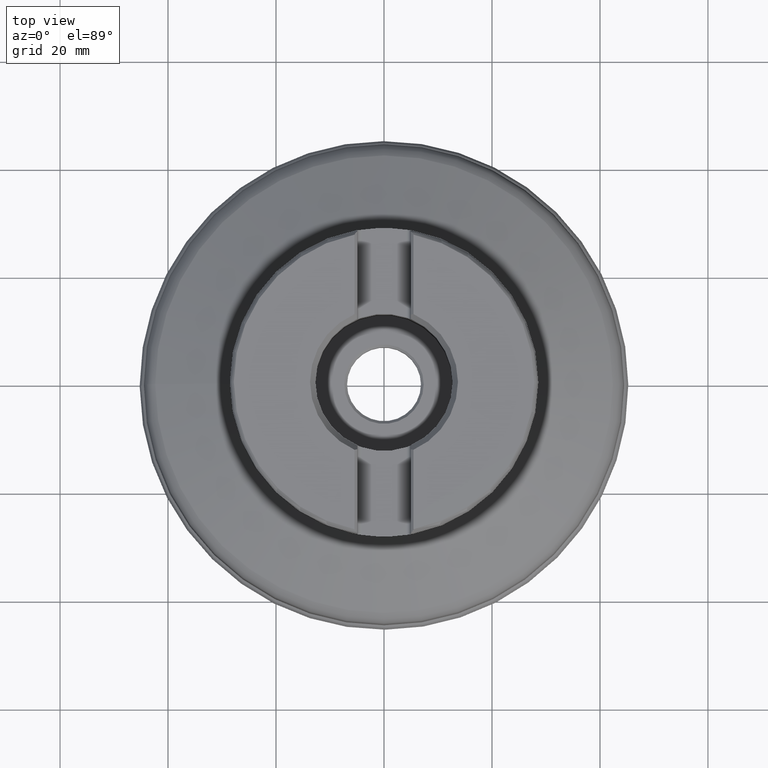
[diagram: clean part render]
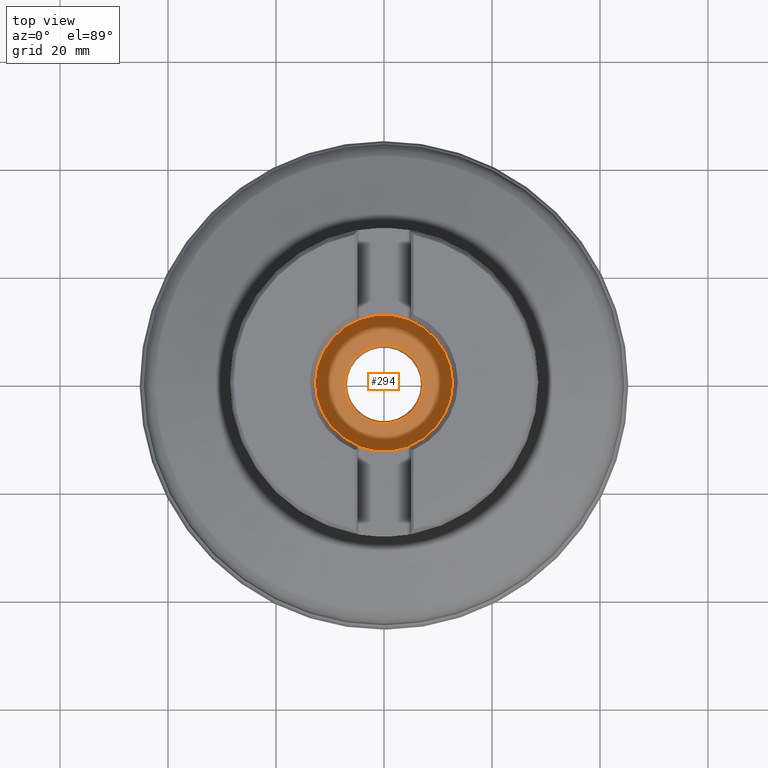
[diagram: same view with one face highlighted and labeled with its STEP entity id]
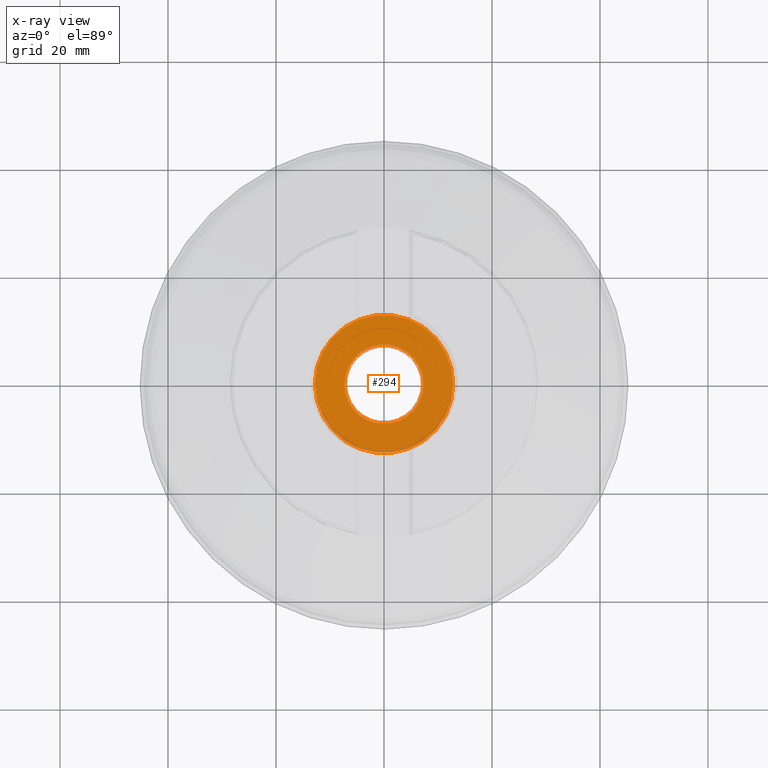
[diagram: x-ray of the same camera — body ghosted, the highlighted face saturated]
A machine part, top view. The second image highlights one B-rep face of the part: STEP entity #294.
The next image is the same camera in x-ray: the body ghosted, the highlighted face saturated — about 4% of this face is hidden behind the body in this view.
In plain terms, the highlighted planar face has unit normal (0, 0, 1).
Its self-contained STEP definition (entity closure, byte-faithful):
#166=PLANE('',#1122);
#294=ADVANCED_FACE('',(#375,#376),#166,.T.);
#375=FACE_BOUND('',#475,.T.);
#376=FACE_BOUND('',#476,.T.);
#475=EDGE_LOOP('',(#637));
#476=EDGE_LOOP('',(#638));
#637=ORIENTED_EDGE('',*,*,#925,.T.);
#638=ORIENTED_EDGE('',*,*,#926,.T.);
#831=VERTEX_POINT('',#1961);
#832=VERTEX_POINT('',#1963);
#925=EDGE_CURVE('',#831,#831,#995,.T.);
#926=EDGE_CURVE('',#832,#832,#996,.T.);
#995=CIRCLE('',#1120,12.8);
#996=CIRCLE('',#1121,7.3453);
#1120=AXIS2_PLACEMENT_3D('',#1960,#1280,#1281);
#1121=AXIS2_PLACEMENT_3D('',#1962,#1282,#1283);
#1122=AXIS2_PLACEMENT_3D('',#1964,#1284,#1285);
#1280=DIRECTION('',(1.17145536458252E-15,0.,1.));
#1281=DIRECTION('',(1.,0.,-1.0842021724855E-15));
#1282=DIRECTION('',(-1.17145536458252E-15,0.,-1.));
#1283=DIRECTION('',(1.,0.,-9.44671273318616E-16));
#1284=DIRECTION('',(1.17145536458252E-15,0.,1.));
#1285=DIRECTION('',(1.,0.,-1.17267306976032E-15));
#1960=CARTESIAN_POINT('',(2.39562622057126E-14,0.,20.45));
#1961=CARTESIAN_POINT('',(12.8,0.,20.45));
#1962=CARTESIAN_POINT('',(2.39562622057126E-14,0.,20.45));
#1963=CARTESIAN_POINT('',(7.34530000000002,0.,20.45));
#1964=CARTESIAN_POINT('',(2.39562622057126E-14,-13.2,20.45));